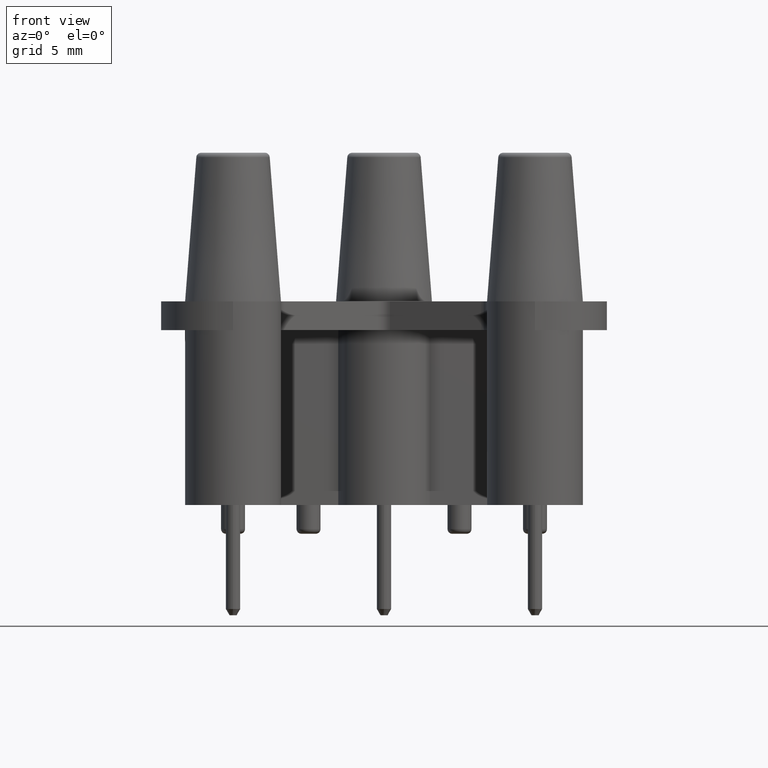
[diagram: clean part render]
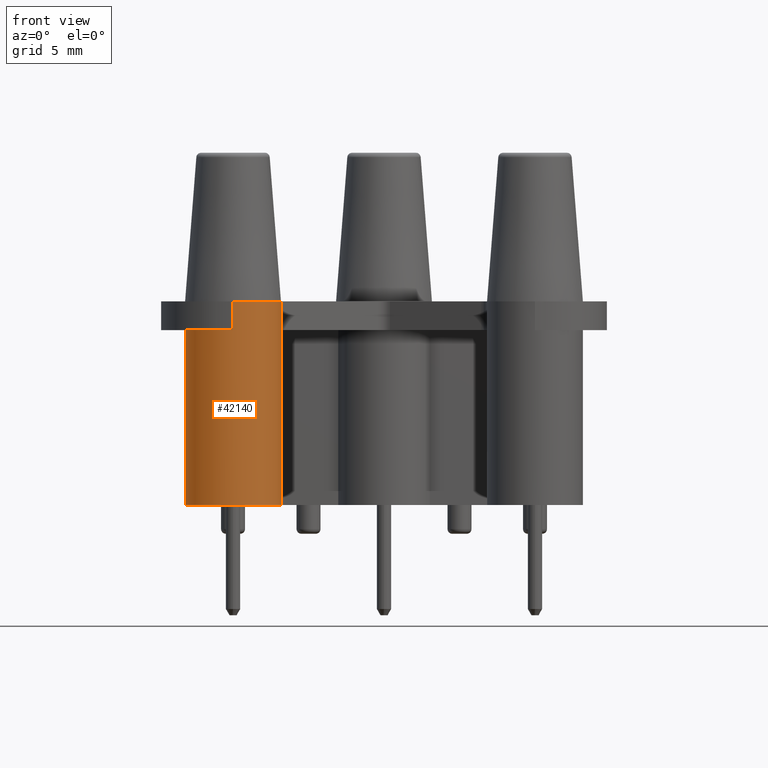
[diagram: same view with one face highlighted and labeled with its STEP entity id]
A machine part, front view. The second image highlights one B-rep face of the part: STEP entity #42140.
In plain terms, the highlighted cylindrical surface (partial cylindrical patch) has radius 2 mm, axis along (0, 0, -1).
Its self-contained STEP definition (entity closure, byte-faithful):
#1190=CARTESIAN_POINT('',(50.9129610115911,50.9078784028339,1.2));
#1200=VERTEX_POINT('',#1190);
#2610=CARTESIAN_POINT('',(50.3129610115911,47.,1.2));
#2620=VERTEX_POINT('',#2610);
#2650=CARTESIAN_POINT('',(50.3129610115911,49.,1.2));
#2660=DIRECTION('',(0.,0.,1.));
#2670=DIRECTION('',(1.,0.,0.));
#2680=AXIS2_PLACEMENT_3D('',#2650,#2660,#2670);
#2690=CIRCLE('',#2680,2.);
#2700=EDGE_CURVE('',#2620,#1200,#2690,.T.);
#9080=CARTESIAN_POINT('',(50.3129610115911,47.,0.));
#9090=VERTEX_POINT('',#9080);
#10240=CARTESIAN_POINT('',(48.3129610115911,49.,0.));
#10250=VERTEX_POINT('',#10240);
#24400=CARTESIAN_POINT('',(50.3129610115911,47.,0.));
#24410=DIRECTION('',(0.,0.,1.));
#24420=VECTOR('',#24410,1.);
#24430=LINE('',#24400,#24420);
#24440=EDGE_CURVE('',#9090,#2620,#24430,.T.);
#25800=CARTESIAN_POINT('',(49.7129610115911,50.9078784028339,1.2));
#25810=VERTEX_POINT('',#25800);
#25890=CARTESIAN_POINT('',(49.7129610115911,50.9078784028339,8.5));
#25900=VERTEX_POINT('',#25890);
#25930=CARTESIAN_POINT('',(49.7129610115911,50.9078784028339,1.2));
#25940=DIRECTION('',(0.,0.,1.));
#25950=VECTOR('',#25940,1.);
#25960=LINE('',#25930,#25950);
#25970=EDGE_CURVE('',#25810,#25900,#25960,.T.);
#26470=CARTESIAN_POINT('',(50.9129610115911,50.9078784028339,1.2));
#26480=DIRECTION('',(0.,0.,1.));
#26490=VECTOR('',#26480,1.);
#26500=LINE('',#26470,#26490);
#26510=CARTESIAN_POINT('',(50.9129610115911,50.9078784028339,8.5));
#26520=VERTEX_POINT('',#26510);
#26530=EDGE_CURVE('',#1200,#26520,#26500,.T.);
#33000=CARTESIAN_POINT('',(50.3129610115911,49.,1.2));
#33010=DIRECTION('',(0.,0.,1.));
#33020=DIRECTION('',(1.,0.,0.));
#33030=AXIS2_PLACEMENT_3D('',#33000,#33010,#33020);
#33040=CIRCLE('',#33030,2.);
#33050=CARTESIAN_POINT('',(48.3129610115911,49.,1.2));
#33060=VERTEX_POINT('',#33050);
#33070=EDGE_CURVE('',#25810,#33060,#33040,.T.);
#35640=CARTESIAN_POINT('',(50.3129610115911,49.,8.5));
#35650=DIRECTION('',(0.,0.,1.));
#35660=DIRECTION('',(1.,0.,0.));
#35670=AXIS2_PLACEMENT_3D('',#35640,#35650,#35660);
#35680=CIRCLE('',#35670,2.);
#35690=EDGE_CURVE('',#25900,#26520,#35680,.T.);
#41880=CARTESIAN_POINT('',(50.3129610115911,49.,1.2));
#41890=DIRECTION('',(0.,0.,1.));
#41900=DIRECTION('',(1.,0.,0.));
#41910=AXIS2_PLACEMENT_3D('',#41880,#41890,#41900);
#41920=CYLINDRICAL_SURFACE('',#41910,2.);
#41930=ORIENTED_EDGE('',*,*,#24440,.T.);
#41940=CARTESIAN_POINT('',(50.3129610115911,49.,0.));
#41950=DIRECTION('',(0.,0.,1.));
#41960=DIRECTION('',(1.,0.,0.));
#41970=AXIS2_PLACEMENT_3D('',#41940,#41950,#41960);
#41980=CIRCLE('',#41970,2.);
#41990=EDGE_CURVE('',#10250,#9090,#41980,.T.);
#42000=ORIENTED_EDGE('',*,*,#41990,.T.);
#42010=CARTESIAN_POINT('',(48.3129610115911,49.,1.2));
#42020=DIRECTION('',(0.,0.,1.));
#42030=VECTOR('',#42020,1.);
#42040=LINE('',#42010,#42030);
#42050=EDGE_CURVE('',#10250,#33060,#42040,.T.);
#42060=ORIENTED_EDGE('',*,*,#42050,.F.);
#42070=ORIENTED_EDGE('',*,*,#33070,.T.);
#42080=ORIENTED_EDGE('',*,*,#25970,.F.);
#42090=ORIENTED_EDGE('',*,*,#35690,.F.);
#42100=ORIENTED_EDGE('',*,*,#26530,.T.);
#42110=ORIENTED_EDGE('',*,*,#2700,.T.);
#42120=EDGE_LOOP('',(#42110,#42100,#42090,#42080,#42070,#42060,#42000,
#41930));
#42130=FACE_OUTER_BOUND('',#42120,.T.);
#42140=ADVANCED_FACE('',(#42130),#41920,.T.);